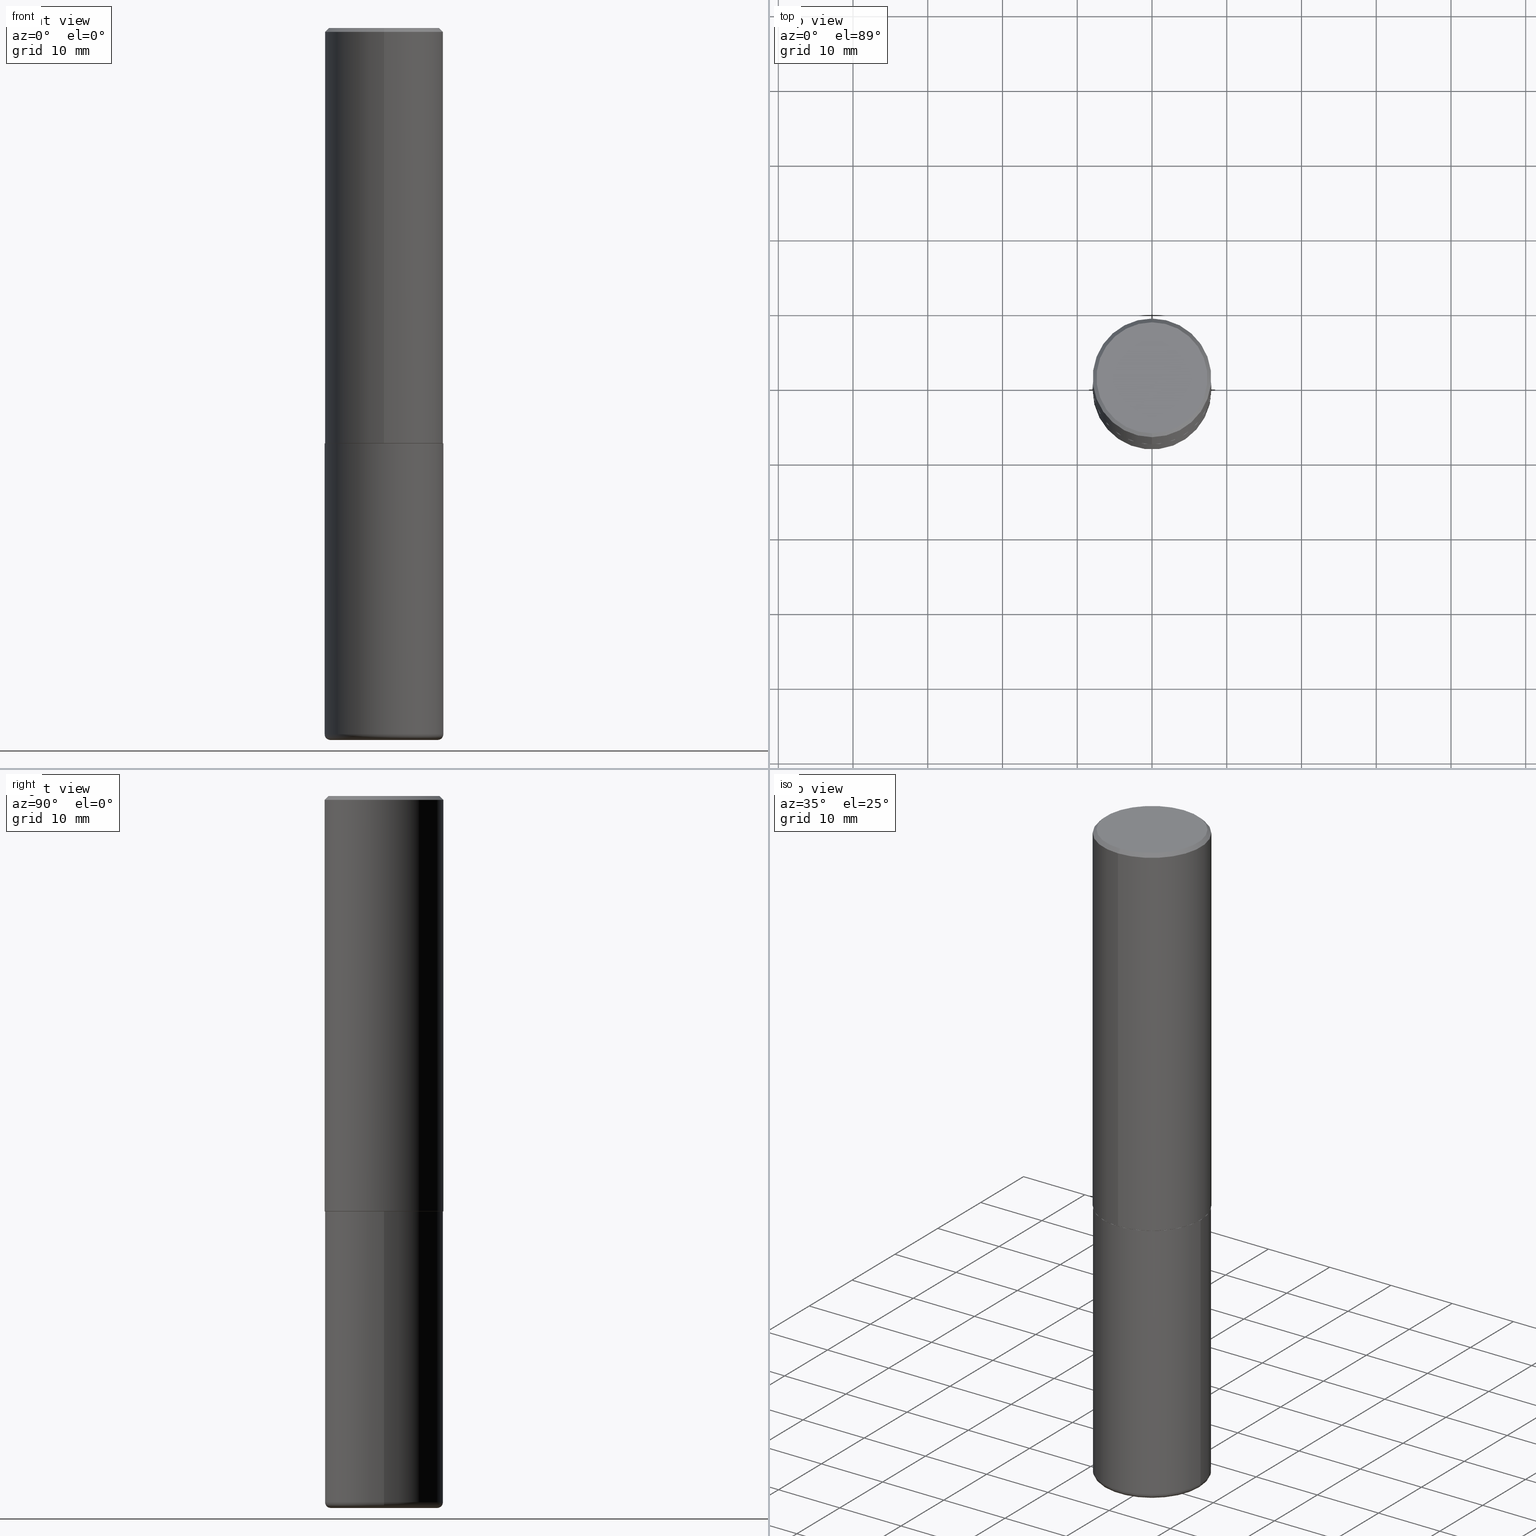
[diagram: canonical four-view strip — front | top / right | iso, engineering-drawing reading convention]
A machine part, canonical four-view strip (front | top / right | iso — engineering-drawing reading convention). The complete STEP part file that produces these views, byte-faithful:
ISO-10303-21;
HEADER;
FILE_DESCRIPTION (( 'STEP AP203' ),
    '1' );
FILE_NAME ('77383.STEP',
    '2024-05-02T19:34:33',
    ( '' ),
    ( '' ),
    'SwSTEP 2.0',
    'SolidWorks 2023',
    '' );
FILE_SCHEMA (( 'CONFIG_CONTROL_DESIGN' ));
ENDSEC;

DATA;
#1 = EDGE_LOOP ( 'NONE', ( #92, #311 ) ) ;
#2 = AXIS2_PLACEMENT_3D ( 'NONE', #60, #357, #396 ) ;
#3 = EDGE_LOOP ( 'NONE', ( #121, #36, #211, #184 ) ) ;
#4 = ORIENTED_EDGE ( 'NONE', *, *, #191, .F. ) ;
#5 = ORIENTED_EDGE ( 'NONE', *, *, #355, .F. ) ;
#6 = CARTESIAN_POINT ( 'NONE',  ( 5.348352127477146811E-29, -7.632212748918013096E-15, -2.186500000000000110 ) ) ;
#7 = CARTESIAN_POINT ( 'NONE',  ( 5.348352127477146811E-29, -7.632212748918013096E-15, -2.186500000000000110 ) ) ;
#8 = CALENDAR_DATE ( 2024, 2, 5 ) ;
#9 = DIRECTION ( 'NONE',  ( -6.982962677686265922E-15, -1.000000000000000000, 3.496765431890253764E-15 ) ) ;
#10 = EDGE_CURVE ( 'NONE', #34, #105, #149, .T. ) ;
#11 = CONICAL_SURFACE ( 'NONE', #78, 0.3125000000000000000, 0.7853981633974471688 ) ;
#12 = EDGE_LOOP ( 'NONE', ( #63, #179 ) ) ;
#13 = CARTESIAN_POINT ( 'NONE',  ( -0.3125000000000000000, -8.092516955357627487E-15, -2.187500000000000000 ) ) ;
#14 = AXIS2_PLACEMENT_3D ( 'NONE', #7, #134, #88 ) ;
#15 = CARTESIAN_POINT ( 'NONE',  ( 2.213340621892764926E-15, 0.3114999999999923386, -2.187500000000001332 ) ) ;
#16 = ORIENTED_EDGE ( 'NONE', *, *, #115, .T. ) ;
#17 = CARTESIAN_POINT ( 'NONE',  ( 2.182175836776958741E-15, 0.3124999999999999445, -0.02000000000000116268 ) ) ;
#18 = ADVANCED_FACE ( 'NONE', ( #241 ), #298, .T. ) ;
#19 = AXIS2_PLACEMENT_3D ( 'NONE', #110, #68, #363 ) ;
#20 = LINE ( 'NONE', #17, #251 ) ;
#21 = AXIS2_PLACEMENT_3D ( 'NONE', #122, #156, #386 ) ;
#22 = ORIENTED_EDGE ( 'NONE', *, *, #342, .T. ) ;
#23 = DATE_AND_TIME ( #77, #335 ) ;
#24 = DIRECTION ( 'NONE',  ( -2.446079180186209356E-29, 3.490607248533278647E-15, 1.000000000000000000 ) ) ;
#25 = EDGE_CURVE ( 'NONE', #390, #272, #319, .T. ) ;
#26 = CARTESIAN_POINT ( 'NONE',  ( -0.3125000000000000000, 2.220446049250313081E-15, -1.537167215704658232E-29 ) ) ;
#27 = APPROVAL_PERSON_ORGANIZATION ( #55, #69, #208 ) ;
#28 = ORIENTED_EDGE ( 'NONE', *, *, #10, .T. ) ;
#29 = CARTESIAN_POINT ( 'NONE',  ( 5.350798206657333543E-29, -7.635703356166547780E-15, -2.187500000000000000 ) ) ;
#30 = PERSON_AND_ORGANIZATION ( #409, #288 ) ;
#31 = EDGE_CURVE ( 'NONE', #272, #213, #310, .T. ) ;
#32 = VERTEX_POINT ( 'NONE', #341 ) ;
#33 = AXIS2_PLACEMENT_3D ( 'NONE', #45, #304, #117 ) ;
#34 = VERTEX_POINT ( 'NONE', #58 ) ;
#35 = CIRCLE ( 'NONE', #280, 0.3125000000000000000 ) ;
#36 = ORIENTED_EDGE ( 'NONE', *, *, #302, .T. ) ;
#37 = DIRECTION ( 'NONE',  ( -1.000000000000000000, 6.982962677686265922E-15, -4.876176775795935793E-29 ) ) ;
#38 = DIRECTION ( 'NONE',  ( -2.446079180186209356E-29, 3.490607248533278647E-15, 1.000000000000000000 ) ) ;
#39 = DIRECTION ( 'NONE',  ( -2.446079180186209356E-29, 3.490607248533278647E-15, 1.000000000000000000 ) ) ;
#40 = APPROVAL_STATUS ( 'not_yet_approved' ) ;
#41 = CLOSED_SHELL ( 'NONE', ( #223, #173, #192, #212, #316, #231 ) ) ;
#42 = EDGE_LOOP ( 'NONE', ( #57, #28, #91, #4 ) ) ;
#43 = AXIS2_PLACEMENT_3D ( 'NONE', #413, #119, #86 ) ;
#44 = FACE_OUTER_BOUND ( 'NONE', #205, .T. ) ;
#45 = CARTESIAN_POINT ( 'NONE',  ( 4.892158360372435246E-31, -6.981214497066581551E-17, -0.02000000000000006981 ) ) ;
#46 = DIRECTION ( 'NONE',  ( -4.851104656540957964E-15, -0.7071067811865491270, -0.7071067811865459074 ) ) ;
#47 = CARTESIAN_POINT ( 'NONE',  ( -0.2824999999999999734, -1.092681816169285040E-14, -3.750000000000000888 ) ) ;
#48 = MECHANICAL_CONTEXT ( 'NONE', #200, 'mechanical' ) ;
#49 = CARTESIAN_POINT ( 'NONE',  ( 0.000000000000000000, 0.000000000000000000, 0.000000000000000000 ) ) ;
#50 = CC_DESIGN_APPROVAL ( #62, ( #103 ) ) ;
#51 = EDGE_LOOP ( 'NONE', ( #93, #362, #120, #61 ) ) ;
#52 = COORDINATED_UNIVERSAL_TIME_OFFSET ( 5, 0, .BEHIND. ) ;
#53 = CARTESIAN_POINT ( 'NONE',  ( -2.143905624303602824E-15, -0.3125000000000000555, -0.01999999999999897693 ) ) ;
#54 = DIRECTION ( 'NONE',  ( -2.445468806185136597E-29, 3.491481338843145583E-15, 1.000000000000000000 ) ) ;
#55 = PERSON_AND_ORGANIZATION ( #409, #288 ) ;
#56 = CARTESIAN_POINT ( 'NONE',  ( 0.3125000000000001665, -1.517048641727346397E-14, -3.720000000000000195 ) ) ;
#57 = ORIENTED_EDGE ( 'NONE', *, *, #141, .T. ) ;
#58 = CARTESIAN_POINT ( 'NONE',  ( 2.220446049250340691E-15, 0.3124999999999926170, -2.186500000000000998 ) ) ;
#59 = COORDINATED_UNIVERSAL_TIME_OFFSET ( 5, 0, .BEHIND. ) ;
#60 = CARTESIAN_POINT ( 'NONE',  ( 9.097143959008708723E-29, -1.298831058049650089E-14, -3.720000000000000195 ) ) ;
#61 = ORIENTED_EDGE ( 'NONE', *, *, #325, .T. ) ;
#62 = APPROVAL ( #40, 'UNSPECIFIED' ) ;
#63 = ORIENTED_EDGE ( 'NONE', *, *, #395, .F. ) ;
#64 = EDGE_LOOP ( 'NONE', ( #254, #332, #367, #5 ) ) ;
#65 = SECURITY_CLASSIFICATION_LEVEL ( 'unclassified' ) ;
#66 = DIRECTION ( 'NONE',  ( -6.982962677686265922E-15, -1.000000000000000000, 3.490607248533278647E-15 ) ) ;
#67 = AXIS2_PLACEMENT_3D ( 'NONE', #247, #323, #37 ) ;
#68 = DIRECTION ( 'NONE',  ( -2.445468806185136597E-29, 3.491481338843145583E-15, 1.000000000000000000 ) ) ;
#69 = APPROVAL ( #281, 'UNSPECIFIED' ) ;
#70 = DIRECTION ( 'NONE',  ( -2.445468806185136597E-29, 3.491481338843145583E-15, 1.000000000000000000 ) ) ;
#71 = PRODUCT ( '77383', '77383', '', ( #48 ) ) ;
#72 = VERTEX_POINT ( 'NONE', #47 ) ;
#73 = DIRECTION ( 'NONE',  ( 7.105427357601001859E-15, 1.000000000000000000, -3.491481338843145583E-15 ) ) ;
#74 = CIRCLE ( 'NONE', #220, 0.2824999999999999734 ) ;
#75 = CARTESIAN_POINT ( 'NONE',  ( 2.112346210000096232E-15, 0.2925000000000002043, -1.221878378646340071E-15 ) ) ;
#76 = CALENDAR_DATE ( 2024, 2, 5 ) ;
#77 = CALENDAR_DATE ( 2024, 2, 5 ) ;
#78 = AXIS2_PLACEMENT_3D ( 'NONE', #265, #402, #400 ) ;
#79 = TOROIDAL_SURFACE ( 'NONE', #2, 0.2825000000000000289, 0.03000000000000024175 ) ;
#80 = CARTESIAN_POINT ( 'NONE',  ( 9.097143959008708723E-29, -1.298831058049650089E-14, -3.720000000000000195 ) ) ;
#81 = DIRECTION ( 'NONE',  ( 1.000000000000000000, -6.982962677686270655E-15, 0.000000000000000000 ) ) ;
#82 = PLANE ( 'NONE',  #385 ) ;
#83 = ORIENTED_EDGE ( 'NONE', *, *, #230, .T. ) ;
#84 = CARTESIAN_POINT ( 'NONE',  ( 0.000000000000000000, 0.000000000000000000, 0.000000000000000000 ) ) ;
#85 = ADVANCED_FACE ( 'NONE', ( #207 ), #404, .F. ) ;
#86 = DIRECTION ( 'NONE',  ( -6.982962677686265922E-15, -1.000000000000000000, 3.507991003100177457E-15 ) ) ;
#87 = DIRECTION ( 'NONE',  ( -2.446079180186209356E-29, 3.490607248533278647E-15, 1.000000000000000000 ) ) ;
#88 = DIRECTION ( 'NONE',  ( -6.982962677686265922E-15, -1.000000000000000000, 3.496765431890253764E-15 ) ) ;
#89 = VECTOR ( 'NONE', #273, 39.37007874015748143 ) ;
#90 = ADVANCED_FACE ( 'NONE', ( #189 ), #11, .T. ) ;
#91 = ORIENTED_EDGE ( 'NONE', *, *, #286, .F. ) ;
#92 = ORIENTED_EDGE ( 'NONE', *, *, #218, .T. ) ;
#93 = ORIENTED_EDGE ( 'NONE', *, *, #275, .F. ) ;
#94 = EDGE_LOOP ( 'NONE', ( #233, #287, #347, #160 ) ) ;
#95 = EDGE_CURVE ( 'NONE', #72, #272, #305, .T. ) ;
#96 = ORIENTED_EDGE ( 'NONE', *, *, #128, .F. ) ;
#97 = AXIS2_PLACEMENT_3D ( 'NONE', #338, #144, #268 ) ;
#98 = ORIENTED_EDGE ( 'NONE', *, *, #104, .T. ) ;
#99 = PERSON_AND_ORGANIZATION ( #409, #288 ) ;
#100 = LINE ( 'NONE', #397, #312 ) ;
#101 = PERSON_AND_ORGANIZATION_ROLE ( 'classification_officer' ) ;
#102 =( GEOMETRIC_REPRESENTATION_CONTEXT ( 3 ) GLOBAL_UNCERTAINTY_ASSIGNED_CONTEXT ( ( #289 ) ) GLOBAL_UNIT_ASSIGNED_CONTEXT ( ( #235, #216, #266 ) ) REPRESENTATION_CONTEXT ( 'NONE', 'WORKASPACE' ) );
#103 = SECURITY_CLASSIFICATION ( '', '', #65 ) ;
#104 = EDGE_CURVE ( 'NONE', #248, #245, #100, .T. ) ;
#105 = VERTEX_POINT ( 'NONE', #296 ) ;
#106 = APPROVAL_DATE_TIME ( #255, #62 ) ;
#107 = DIRECTION ( 'NONE',  ( -2.446079180186209356E-29, 3.490607248533278647E-15, 1.000000000000000000 ) ) ;
#108 = APPROVAL_STATUS ( 'not_yet_approved' ) ;
#109 = CARTESIAN_POINT ( 'NONE',  ( -2.143905624303602824E-15, -0.3125000000000000555, -0.01999999999999897693 ) ) ;
#110 = CARTESIAN_POINT ( 'NONE',  ( 0.000000000000000000, 0.000000000000000000, 0.000000000000000000 ) ) ;
#111 = AXIS2_PLACEMENT_3D ( 'NONE', #337, #282, #81 ) ;
#112 = LOCAL_TIME ( 15, 34, 33.00000000000000000, #135 ) ;
#113 = CARTESIAN_POINT ( 'NONE',  ( 0.2825000000000000289, -1.496099753694287092E-14, -3.720000000000000195 ) ) ;
#114 = CARTESIAN_POINT ( 'NONE',  ( 5.349463013529986305E-29, -7.637615428719381825E-15, -2.187500000000000000 ) ) ;
#115 = EDGE_CURVE ( 'NONE', #34, #245, #365, .T. ) ;
#116 = DIRECTION ( 'NONE',  ( 1.000000000000000000, -6.982962677686270655E-15, 0.000000000000000000 ) ) ;
#117 = DIRECTION ( 'NONE',  ( 6.982962677686265133E-15, 1.000000000000000000, -3.496765431890256920E-15 ) ) ;
#118 = AXIS2_PLACEMENT_3D ( 'NONE', #290, #244, #381 ) ;
#119 = DIRECTION ( 'NONE',  ( -2.446079180186209356E-29, 3.490607248533278647E-15, 1.000000000000000000 ) ) ;
#120 = ORIENTED_EDGE ( 'NONE', *, *, #322, .T. ) ;
#121 = ORIENTED_EDGE ( 'NONE', *, *, #395, .T. ) ;
#122 = CARTESIAN_POINT ( 'NONE',  ( 4.913580105495284132E-45, -7.011783785014308296E-31, -2.008757584503554466E-16 ) ) ;
#123 = CC_DESIGN_DATE_AND_TIME_ASSIGNMENT ( #142, #364, ( #140 ) ) ;
#124 = PLANE ( 'NONE',  #67 ) ;
#125 = ADVANCED_FACE ( 'NONE', ( #132 ), #257, .F. ) ;
#126 = CIRCLE ( 'NONE', #202, 0.3125000000000000000 ) ;
#127 = EDGE_LOOP ( 'NONE', ( #299, #176, #283, #285 ) ) ;
#128 = EDGE_CURVE ( 'NONE', #272, #390, #126, .T. ) ;
#129 = EDGE_CURVE ( 'NONE', #324, #248, #360, .T. ) ;
#130 = FACE_OUTER_BOUND ( 'NONE', #157, .T. ) ;
#131 = VECTOR ( 'NONE', #411, 39.37007874015748143 ) ;
#132 = FACE_OUTER_BOUND ( 'NONE', #1, .T. ) ;
#133 = AXIS2_PLACEMENT_3D ( 'NONE', #80, #405, #345 ) ;
#134 = DIRECTION ( 'NONE',  ( -2.446079180186209356E-29, 3.490607248533278647E-15, 1.000000000000000000 ) ) ;
#135 = COORDINATED_UNIVERSAL_TIME_OFFSET ( 5, 0, .BEHIND. ) ;
#136 = DIRECTION ( 'NONE',  ( -2.446079180186209356E-29, 3.490607248533278647E-15, 1.000000000000000000 ) ) ;
#137 = CARTESIAN_POINT ( 'NONE',  ( 9.097143959008708723E-29, -1.298831058049650089E-14, -3.720000000000000195 ) ) ;
#138 = DIMENSIONAL_EXPONENTS ( 1.000000000000000000, 0.000000000000000000, 0.000000000000000000, 0.000000000000000000, 0.000000000000000000, 0.000000000000000000, 0.000000000000000000 ) ;
#139 = PERSON_AND_ORGANIZATION ( #409, #288 ) ;
#140 = PRODUCT_DEFINITION ( 'UNKNOWN', '', #292, #415 ) ;
#141 = EDGE_CURVE ( 'NONE', #245, #34, #195, .T. ) ;
#142 = DATE_AND_TIME ( #314, #177 ) ;
#143 = CARTESIAN_POINT ( 'NONE',  ( -2.175192874099218296E-15, -0.3115000000000076597, -2.187499999999999112 ) ) ;
#144 = DIRECTION ( 'NONE',  ( 0.000000000000000000, 0.000000000000000000, 1.000000000000000000 ) ) ;
#145 = DIRECTION ( 'NONE',  ( -6.982962677686266711E-15, -1.000000000000000000, 3.491481338843145583E-15 ) ) ;
#146 = CARTESIAN_POINT ( 'NONE',  ( 2.220446049250313475E-15, 0.3125000000000001665, -1.090814765166650021E-15 ) ) ;
#147 = APPLICATION_PROTOCOL_DEFINITION ( 'international standard', 'config_control_design', 1994, #284 ) ;
#148 = FACE_OUTER_BOUND ( 'NONE', #344, .T. ) ;
#149 = LINE ( 'NONE', #146, #131 ) ;
#150 = DATE_AND_TIME ( #378, #154 ) ;
#151 = CARTESIAN_POINT ( 'NONE',  ( 9.170508023194263359E-29, -1.309305502066179899E-14, -3.750000000000000888 ) ) ;
#152 = ORIENTED_EDGE ( 'NONE', *, *, #240, .T. ) ;
#153 = CC_DESIGN_APPROVAL ( #69, ( #140 ) ) ;
#154 = LOCAL_TIME ( 15, 34, 33.00000000000000000, #417 ) ;
#155 = DIRECTION ( 'NONE',  ( -2.446079180186209075E-29, 3.490607248533278647E-15, 1.000000000000000000 ) ) ;
#156 = DIRECTION ( 'NONE',  ( -2.446079180186209356E-29, 3.490607248533278647E-15, 1.000000000000000000 ) ) ;
#157 = EDGE_LOOP ( 'NONE', ( #354, #219, #353, #228 ) ) ;
#158 = AXIS2_PLACEMENT_3D ( 'NONE', #368, #24, #278 ) ;
#159 = DIRECTION ( 'NONE',  ( -4.937700262165053702E-15, -0.7071067811866175168, 0.7071067811864775177 ) ) ;
#160 = ORIENTED_EDGE ( 'NONE', *, *, #322, .F. ) ;
#161 = DIRECTION ( 'NONE',  ( 1.000000000000000000, -6.982962677686269077E-15, 0.000000000000000000 ) ) ;
#162 = CIRCLE ( 'NONE', #183, 0.3125000000000000000 ) ;
#163 = COORDINATED_UNIVERSAL_TIME_OFFSET ( 5, 0, .BEHIND. ) ;
#164 = DIRECTION ( 'NONE',  ( 1.000000000000000000, -6.982962677686266711E-15, 4.876176775795936353E-29 ) ) ;
#165 = APPROVAL_ROLE ( '' ) ;
#166 = CC_DESIGN_PERSON_AND_ORGANIZATION_ASSIGNMENT ( #139, #412, ( #292 ) ) ;
#167 = CONICAL_SURFACE ( 'NONE', #209, 0.3114999999999999991, 0.7853981633975507526 ) ;
#168 = DIRECTION ( 'NONE',  ( -6.982962677686265133E-15, -1.000000000000000000, 3.490607248533278253E-15 ) ) ;
#169 = LINE ( 'NONE', #15, #313 ) ;
#170 = CONICAL_SURFACE ( 'NONE', #43, 0.3114999999999999991, 0.7853981633975507526 ) ;
#171 = APPROVAL_PERSON_ORGANIZATION ( #30, #256, #165 ) ;
#172 = FACE_OUTER_BOUND ( 'NONE', #42, .T. ) ;
#173 = ADVANCED_FACE ( 'NONE', ( #130 ), #79, .T. ) ;
#174 = ORIENTED_EDGE ( 'NONE', *, *, #191, .T. ) ;
#175 = CARTESIAN_POINT ( 'NONE',  ( 2.216893335571566614E-15, 0.3114999999999923386, -2.187500000000001332 ) ) ;
#176 = ORIENTED_EDGE ( 'NONE', *, *, #128, .T. ) ;
#177 = LOCAL_TIME ( 15, 34, 33.00000000000000000, #59 ) ;
#178 = ADVANCED_BREP_SHAPE_REPRESENTATION ( '77383', ( #398, #252, #97 ), #102 ) ;
#179 = ORIENTED_EDGE ( 'NONE', *, *, #129, .F. ) ;
#180 = EDGE_CURVE ( 'NONE', #32, #188, #414, .T. ) ;
#181 = ORIENTED_EDGE ( 'NONE', *, *, #115, .F. ) ;
#182 = AXIS2_PLACEMENT_3D ( 'NONE', #224, #73, #330 ) ;
#183 = AXIS2_PLACEMENT_3D ( 'NONE', #201, #236, #204 ) ;
#184 = ORIENTED_EDGE ( 'NONE', *, *, #104, .F. ) ;
#185 = AXIS2_PLACEMENT_3D ( 'NONE', #29, #155, #66 ) ;
#186 = CARTESIAN_POINT ( 'NONE',  ( 2.042516583223234117E-15, 0.2925000000000002043, -1.121440499421162508E-15 ) ) ;
#187 = AXIS2_PLACEMENT_3D ( 'NONE', #229, #300, #168 ) ;
#188 = VERTEX_POINT ( 'NONE', #75 ) ;
#189 = FACE_OUTER_BOUND ( 'NONE', #51, .T. ) ;
#190 = LINE ( 'NONE', #295, #351 ) ;
#191 = EDGE_CURVE ( 'NONE', #245, #262, #190, .T. ) ;
#192 = ADVANCED_FACE ( 'NONE', ( #407 ), #82, .F. ) ;
#193 = PERSON_AND_ORGANIZATION ( #409, #288 ) ;
#194 = APPROVAL_DATE_TIME ( #23, #69 ) ;
#195 = CIRCLE ( 'NONE', #14, 0.3125000000000002776 ) ;
#196 = DIRECTION ( 'NONE',  ( 4.937700262164541731E-15, 0.7071067811865442421, -0.7071067811865507924 ) ) ;
#197 = EDGE_LOOP ( 'NONE', ( #416, #291, #98, #181 ) ) ;
#198 = DIRECTION ( 'NONE',  ( 1.000000000000000000, -6.982962677686269077E-15, 0.000000000000000000 ) ) ;
#199 = CC_DESIGN_PERSON_AND_ORGANIZATION_ASSIGNMENT ( #99, #259, ( #292 ) ) ;
#200 = APPLICATION_CONTEXT ( 'configuration controlled 3d designs of mechanical parts and assemblies' ) ;
#201 = CARTESIAN_POINT ( 'NONE',  ( 4.892158360372435246E-31, -6.981214497066581551E-17, -0.02000000000000006981 ) ) ;
#202 = AXIS2_PLACEMENT_3D ( 'NONE', #137, #70, #161 ) ;
#203 = CARTESIAN_POINT ( 'NONE',  ( 5.349463013529986305E-29, -7.637615428719381825E-15, -2.187500000000000000 ) ) ;
#204 = DIRECTION ( 'NONE',  ( -6.982962677686265133E-15, -1.000000000000000000, 3.496765431890256920E-15 ) ) ;
#205 = EDGE_LOOP ( 'NONE', ( #260, #83, #22, #96 ) ) ;
#206 = CARTESIAN_POINT ( 'NONE',  ( 0.3125000000000000000, -2.182175836776958347E-15, 1.523805242436230075E-29 ) ) ;
#207 = FACE_OUTER_BOUND ( 'NONE', #12, .T. ) ;
#208 = APPROVAL_ROLE ( '' ) ;
#209 = AXIS2_PLACEMENT_3D ( 'NONE', #383, #38, #309 ) ;
#210 = LENGTH_MEASURE_WITH_UNIT ( LENGTH_MEASURE( 0.02539999999999999897 ), #242 );
#211 = ORIENTED_EDGE ( 'NONE', *, *, #141, .F. ) ;
#212 = ADVANCED_FACE ( 'NONE', ( #301 ), #370, .T. ) ;
#213 = VERTEX_POINT ( 'NONE', #13 ) ;
#214 = CYLINDRICAL_SURFACE ( 'NONE', #19, 0.3125000000000000000 ) ;
#215 = AXIS2_PLACEMENT_3D ( 'NONE', #113, #145, #373 ) ;
#216 =( NAMED_UNIT ( * ) PLANE_ANGLE_UNIT ( ) SI_UNIT ( $, .RADIAN. ) );
#217 = DIRECTION ( 'NONE',  ( 6.982962677686265922E-15, 1.000000000000000000, -3.490607248533278647E-15 ) ) ;
#218 = EDGE_CURVE ( 'NONE', #188, #32, #271, .T. ) ;
#219 = ORIENTED_EDGE ( 'NONE', *, *, #95, .T. ) ;
#220 = AXIS2_PLACEMENT_3D ( 'NONE', #151, #308, #116 ) ;
#221 = ORIENTED_EDGE ( 'NONE', *, *, #359, .T. ) ;
#222 = DIRECTION ( 'NONE',  ( -6.982962677686265922E-15, -1.000000000000000000, 3.490607248533278253E-15 ) ) ;
#223 = ADVANCED_FACE ( 'NONE', ( #317 ), #214, .T. ) ;
#224 = CARTESIAN_POINT ( 'NONE',  ( -0.2825000000000000289, -1.098102735197421805E-14, -3.720000000000000195 ) ) ;
#225 = SHAPE_DEFINITION_REPRESENTATION ( #246, #178 ) ;
#226 = DIRECTION ( 'NONE',  ( -1.000000000000000000, 6.982962677686265922E-15, -4.876176775795935793E-29 ) ) ;
#227 = CARTESIAN_POINT ( 'NONE',  ( 5.350798206657333543E-29, -7.635703356166547780E-15, -2.187500000000000000 ) ) ;
#228 = ORIENTED_EDGE ( 'NONE', *, *, #342, .F. ) ;
#229 = CARTESIAN_POINT ( 'NONE',  ( 0.000000000000000000, 0.000000000000000000, 0.000000000000000000 ) ) ;
#230 = EDGE_CURVE ( 'NONE', #72, #382, #406, .T. ) ;
#231 = ADVANCED_FACE ( 'NONE', ( #279 ), #124, .T. ) ;
#232 = DIRECTION ( 'NONE',  ( -2.445468806185136597E-29, 3.491481338843145583E-15, 1.000000000000000000 ) ) ;
#233 = ORIENTED_EDGE ( 'NONE', *, *, #180, .F. ) ;
#234 = DIRECTION ( 'NONE',  ( -2.445468806185136597E-29, 3.491481338843145583E-15, 1.000000000000000000 ) ) ;
#235 =( CONVERSION_BASED_UNIT ( 'INCH', #210 ) LENGTH_UNIT ( ) NAMED_UNIT ( #138 ) );
#236 = DIRECTION ( 'NONE',  ( -2.446079180186209356E-29, 3.490607248533278647E-15, 1.000000000000000000 ) ) ;
#237 = AXIS2_PLACEMENT_3D ( 'NONE', #372, #328, #222 ) ;
#238 = CC_DESIGN_PERSON_AND_ORGANIZATION_ASSIGNMENT ( #258, #101, ( #103 ) ) ;
#239 = DIRECTION ( 'NONE',  ( 5.024295867788576727E-15, 0.7071067811866224018, 0.7071067811864726327 ) ) ;
#240 = EDGE_CURVE ( 'NONE', #213, #358, #320, .T. ) ;
#241 = FACE_OUTER_BOUND ( 'NONE', #94, .T. ) ;
#242 =( LENGTH_UNIT ( ) NAMED_UNIT ( * ) SI_UNIT ( $, .METRE. ) );
#243 = ADVANCED_FACE ( 'NONE', ( #349 ), #167, .T. ) ;
#244 = DIRECTION ( 'NONE',  ( -2.445468806185136597E-29, 3.491481338843145583E-15, 1.000000000000000000 ) ) ;
#245 = VERTEX_POINT ( 'NONE', #403 ) ;
#246 = PRODUCT_DEFINITION_SHAPE ( 'NONE', 'NONE',  #140 ) ;
#247 = CARTESIAN_POINT ( 'NONE',  ( 4.105979019423556328E-29, -2.034574880915099628E-14, -3.750000000000000000 ) ) ;
#248 = VERTEX_POINT ( 'NONE', #143 ) ;
#249 = ORIENTED_EDGE ( 'NONE', *, *, #325, .F. ) ;
#250 = TOROIDAL_SURFACE ( 'NONE', #133, 0.2825000000000000289, 0.03000000000000024175 ) ;
#251 = VECTOR ( 'NONE', #196, 39.37007874015748143 ) ;
#252 = MANIFOLD_SOLID_BREP ( 'Body-Move/Copy2[2]', #384 ) ;
#253 = ADVANCED_FACE ( 'NONE', ( #172 ), #269, .T. ) ;
#254 = ORIENTED_EDGE ( 'NONE', *, *, #25, .T. ) ;
#255 = DATE_AND_TIME ( #76, #112 ) ;
#256 = APPROVAL ( #108, 'UNSPECIFIED' ) ;
#257 = PLANE ( 'NONE',  #393 ) ;
#258 = PERSON_AND_ORGANIZATION ( #409, #288 ) ;
#259 = PERSON_AND_ORGANIZATION_ROLE ( 'design_supplier' ) ;
#260 = ORIENTED_EDGE ( 'NONE', *, *, #95, .F. ) ;
#261 = PERSON_AND_ORGANIZATION ( #409, #288 ) ;
#262 = VERTEX_POINT ( 'NONE', #109 ) ;
#263 = AXIS2_PLACEMENT_3D ( 'NONE', #84, #410, #346 ) ;
#264 = APPLICATION_PROTOCOL_DEFINITION ( 'international standard', 'config_control_design', 1994, #200 ) ;
#265 = CARTESIAN_POINT ( 'NONE',  ( 4.892158360372435246E-31, -6.981214497066581551E-17, -0.02000000000000006981 ) ) ;
#266 =( NAMED_UNIT ( * ) SI_UNIT ( $, .STERADIAN. ) SOLID_ANGLE_UNIT ( ) );
#267 = DIRECTION ( 'NONE',  ( 1.000000000000000000, -6.982962677686269077E-15, 0.000000000000000000 ) ) ;
#268 = DIRECTION ( 'NONE',  ( 1.000000000000000000, 0.000000000000000000, 0.000000000000000000 ) ) ;
#269 = CYLINDRICAL_SURFACE ( 'NONE', #187, 0.3125000000000001665 ) ;
#270 = AXIS2_PLACEMENT_3D ( 'NONE', #6, #107, #9 ) ;
#271 = CIRCLE ( 'NONE', #21, 0.2925000000000002043 ) ;
#272 = VERTEX_POINT ( 'NONE', #340 ) ;
#273 = DIRECTION ( 'NONE',  ( -2.445468806185136877E-29, 3.491481338843145188E-15, 1.000000000000000000 ) ) ;
#274 = CYLINDRICAL_SURFACE ( 'NONE', #263, 0.3125000000000001665 ) ;
#275 = EDGE_CURVE ( 'NONE', #32, #262, #408, .T. ) ;
#276 = APPROVAL_DATE_TIME ( #150, #256 ) ;
#277 = EDGE_CURVE ( 'NONE', #382, #72, #74, .T. ) ;
#278 = DIRECTION ( 'NONE',  ( -6.982962677686265133E-15, -1.000000000000000000, 3.496765431890256920E-15 ) ) ;
#279 = FACE_OUTER_BOUND ( 'NONE', #388, .T. ) ;
#280 = AXIS2_PLACEMENT_3D ( 'NONE', #114, #232, #267 ) ;
#281 = APPROVAL_STATUS ( 'not_yet_approved' ) ;
#282 = DIRECTION ( 'NONE',  ( -2.445468806185136597E-29, 3.491481338843145583E-15, 1.000000000000000000 ) ) ;
#283 = ORIENTED_EDGE ( 'NONE', *, *, #355, .T. ) ;
#284 = APPLICATION_CONTEXT ( 'configuration controlled 3d designs of mechanical parts and assemblies' ) ;
#285 = ORIENTED_EDGE ( 'NONE', *, *, #240, .F. ) ;
#286 = EDGE_CURVE ( 'NONE', #262, #105, #162, .T. ) ;
#287 = ORIENTED_EDGE ( 'NONE', *, *, #275, .T. ) ;
#288 = ORGANIZATION ( 'UNSPECIFIED', 'UNSPECIFIED', '' ) ;
#289 = UNCERTAINTY_MEASURE_WITH_UNIT (LENGTH_MEASURE( 1.000000000000000082E-05 ), #235, 'distance_accuracy_value', 'NONE');
#290 = CARTESIAN_POINT ( 'NONE',  ( 5.349463013529986305E-29, -7.637615428719381825E-15, -2.187500000000000000 ) ) ;
#291 = ORIENTED_EDGE ( 'NONE', *, *, #129, .T. ) ;
#292 = PRODUCT_DEFINITION_FORMATION_WITH_SPECIFIED_SOURCE ( 'ANY', '', #71, .NOT_KNOWN. ) ;
#293 = DIRECTION ( 'NONE',  ( -6.982962677686265922E-15, -1.000000000000000000, 3.507991003100177457E-15 ) ) ;
#294 = DATE_AND_TIME ( #8, #315 ) ;
#295 = CARTESIAN_POINT ( 'NONE',  ( -2.182175836776959136E-15, -0.3125000000000001665, 1.090814765166650021E-15 ) ) ;
#296 = CARTESIAN_POINT ( 'NONE',  ( 2.182175836776958741E-15, 0.3124999999999999445, -0.02000000000000116268 ) ) ;
#297 = PERSON_AND_ORGANIZATION_ROLE ( 'creator' ) ;
#298 = CONICAL_SURFACE ( 'NONE', #33, 0.3125000000000000000, 0.7853981633974471688 ) ;
#299 = ORIENTED_EDGE ( 'NONE', *, *, #31, .F. ) ;
#300 = DIRECTION ( 'NONE',  ( -2.446079180186209356E-29, 3.490607248533278647E-15, 1.000000000000000000 ) ) ;
#301 = FACE_OUTER_BOUND ( 'NONE', #127, .T. ) ;
#302 = EDGE_CURVE ( 'NONE', #324, #34, #169, .T. ) ;
#303 = LINE ( 'NONE', #206, #89 ) ;
#304 = DIRECTION ( 'NONE',  ( 2.446079180186209356E-29, -3.490607248533278647E-15, -1.000000000000000000 ) ) ;
#305 = CIRCLE ( 'NONE', #182, 0.03000000000000025910 ) ;
#306 = AXIS2_PLACEMENT_3D ( 'NONE', #49, #234, #164 ) ;
#307 = PERSON_AND_ORGANIZATION_ROLE ( 'design_owner' ) ;
#308 = DIRECTION ( 'NONE',  ( -2.445468806185136597E-29, 3.491481338843145583E-15, 1.000000000000000000 ) ) ;
#309 = DIRECTION ( 'NONE',  ( -6.982962677686265922E-15, -1.000000000000000000, 3.507991003100177457E-15 ) ) ;
#310 = LINE ( 'NONE', #26, #334 ) ;
#311 = ORIENTED_EDGE ( 'NONE', *, *, #180, .T. ) ;
#312 = VECTOR ( 'NONE', #159, 39.37007874015748143 ) ;
#313 = VECTOR ( 'NONE', #239, 39.37007874015748143 ) ;
#314 = CALENDAR_DATE ( 2024, 2, 5 ) ;
#315 = LOCAL_TIME ( 15, 34, 33.00000000000000000, #163 ) ;
#316 = ADVANCED_FACE ( 'NONE', ( #44 ), #250, .T. ) ;
#317 = FACE_OUTER_BOUND ( 'NONE', #64, .T. ) ;
#318 = EDGE_LOOP ( 'NONE', ( #221, #152 ) ) ;
#319 = CIRCLE ( 'NONE', #374, 0.3125000000000000000 ) ;
#320 = CIRCLE ( 'NONE', #118, 0.3125000000000000000 ) ;
#321 = CC_DESIGN_PERSON_AND_ORGANIZATION_ASSIGNMENT ( #193, #307, ( #71 ) ) ;
#322 = EDGE_CURVE ( 'NONE', #188, #105, #20, .T. ) ;
#323 = DIRECTION ( 'NONE',  ( 2.438088387897960049E-29, -3.491481338843145188E-15, -1.000000000000000000 ) ) ;
#324 = VERTEX_POINT ( 'NONE', #175 ) ;
#325 = EDGE_CURVE ( 'NONE', #105, #262, #343, .T. ) ;
#326 = CARTESIAN_POINT ( 'NONE',  ( 5.350798206657333543E-29, -7.635703356166547780E-15, -2.187500000000000000 ) ) ;
#327 = DATE_TIME_ROLE ( 'classification_date' ) ;
#328 = DIRECTION ( 'NONE',  ( -2.446079180186209356E-29, 3.490607248533278647E-15, 1.000000000000000000 ) ) ;
#329 = CIRCLE ( 'NONE', #399, 0.3114999999999999991 ) ;
#330 = DIRECTION ( 'NONE',  ( -1.000000000000000000, 7.105427357600994759E-15, 0.000000000000000000 ) ) ;
#331 = PRODUCT_RELATED_PRODUCT_CATEGORY ( 'detail', '', ( #71 ) ) ;
#332 = ORIENTED_EDGE ( 'NONE', *, *, #31, .T. ) ;
#333 = DIRECTION ( 'NONE',  ( 2.438088387897960049E-29, -3.491481338843145188E-15, -1.000000000000000000 ) ) ;
#334 = VECTOR ( 'NONE', #380, 39.37007874015748143 ) ;
#335 = LOCAL_TIME ( 15, 34, 33.00000000000000000, #52 ) ;
#336 = CC_DESIGN_DATE_AND_TIME_ASSIGNMENT ( #294, #327, ( #103 ) ) ;
#337 = CARTESIAN_POINT ( 'NONE',  ( 9.170508023194263359E-29, -1.309305502066179899E-14, -3.750000000000000888 ) ) ;
#338 = CARTESIAN_POINT ( 'NONE',  ( 0.000000000000000000, 0.000000000000000000, 0.000000000000000000 ) ) ;
#339 = CARTESIAN_POINT ( 'NONE',  ( 0.3125000000000000000, -9.819791265496340172E-15, -2.187500000000000000 ) ) ;
#340 = CARTESIAN_POINT ( 'NONE',  ( -0.3125000000000001665, -1.076786453124618781E-14, -3.720000000000000195 ) ) ;
#341 = CARTESIAN_POINT ( 'NONE',  ( -2.075300644325888676E-15, -0.2925000000000002043, 8.201268617456294244E-16 ) ) ;
#342 = EDGE_CURVE ( 'NONE', #382, #390, #366, .T. ) ;
#343 = CIRCLE ( 'NONE', #158, 0.3125000000000000000 ) ;
#344 = EDGE_LOOP ( 'NONE', ( #375, #16, #174, #249 ) ) ;
#345 = DIRECTION ( 'NONE',  ( 1.000000000000000000, -6.982962677686269077E-15, 4.883557194083113462E-29 ) ) ;
#346 = DIRECTION ( 'NONE',  ( -6.982962677686265133E-15, -1.000000000000000000, 3.490607248533278253E-15 ) ) ;
#347 = ORIENTED_EDGE ( 'NONE', *, *, #286, .T. ) ;
#348 = PERSON_AND_ORGANIZATION ( #409, #288 ) ;
#349 = FACE_OUTER_BOUND ( 'NONE', #3, .T. ) ;
#350 = ADVANCED_FACE ( 'NONE', ( #379 ), #170, .T. ) ;
#351 = VECTOR ( 'NONE', #136, 39.37007874015748143 ) ;
#352 = CC_DESIGN_SECURITY_CLASSIFICATION ( #103, ( #292 ) ) ;
#353 = ORIENTED_EDGE ( 'NONE', *, *, #25, .F. ) ;
#354 = ORIENTED_EDGE ( 'NONE', *, *, #277, .T. ) ;
#355 = EDGE_CURVE ( 'NONE', #390, #358, #303, .T. ) ;
#356 = AXIS2_PLACEMENT_3D ( 'NONE', #326, #39, #293 ) ;
#357 = DIRECTION ( 'NONE',  ( -2.445468806185136597E-29, 3.491481338843145583E-15, 1.000000000000000000 ) ) ;
#358 = VERTEX_POINT ( 'NONE', #339 ) ;
#359 = EDGE_CURVE ( 'NONE', #358, #213, #35, .T. ) ;
#360 = CIRCLE ( 'NONE', #356, 0.3114999999999999991 ) ;
#361 = APPROVAL_PERSON_ORGANIZATION ( #261, #62, #401 ) ;
#362 = ORIENTED_EDGE ( 'NONE', *, *, #218, .F. ) ;
#363 = DIRECTION ( 'NONE',  ( 1.000000000000000000, -6.982962677686266711E-15, 4.876176775795936353E-29 ) ) ;
#364 = DATE_TIME_ROLE ( 'creation_date' ) ;
#365 = CIRCLE ( 'NONE', #270, 0.3125000000000002776 ) ;
#366 = CIRCLE ( 'NONE', #215, 0.03000000000000025910 ) ;
#367 = ORIENTED_EDGE ( 'NONE', *, *, #359, .F. ) ;
#368 = CARTESIAN_POINT ( 'NONE',  ( 4.892158360372435246E-31, -6.981214497066581551E-17, -0.02000000000000006981 ) ) ;
#369 = CC_DESIGN_PERSON_AND_ORGANIZATION_ASSIGNMENT ( #348, #297, ( #140 ) ) ;
#370 = CYLINDRICAL_SURFACE ( 'NONE', #306, 0.3125000000000000000 ) ;
#371 = CARTESIAN_POINT ( 'NONE',  ( 0.2824999999999999734, -1.506574197710817060E-14, -3.750000000000000888 ) ) ;
#372 = CARTESIAN_POINT ( 'NONE',  ( 4.913580105495284132E-45, -7.011783785014308296E-31, -2.008757584503554466E-16 ) ) ;
#373 = DIRECTION ( 'NONE',  ( 1.000000000000000000, -6.982962677686273021E-15, 0.000000000000000000 ) ) ;
#374 = AXIS2_PLACEMENT_3D ( 'NONE', #377, #54, #198 ) ;
#375 = ORIENTED_EDGE ( 'NONE', *, *, #10, .F. ) ;
#376 = VECTOR ( 'NONE', #46, 39.37007874015748143 ) ;
#377 = CARTESIAN_POINT ( 'NONE',  ( 9.097143959008708723E-29, -1.298831058049650089E-14, -3.720000000000000195 ) ) ;
#378 = CALENDAR_DATE ( 2024, 2, 5 ) ;
#379 = FACE_OUTER_BOUND ( 'NONE', #197, .T. ) ;
#380 = DIRECTION ( 'NONE',  ( -2.445468806185136877E-29, 3.491481338843145188E-15, 1.000000000000000000 ) ) ;
#381 = DIRECTION ( 'NONE',  ( 1.000000000000000000, -6.982962677686269077E-15, 0.000000000000000000 ) ) ;
#382 = VERTEX_POINT ( 'NONE', #371 ) ;
#383 = CARTESIAN_POINT ( 'NONE',  ( 5.350798206657333543E-29, -7.635703356166547780E-15, -2.187500000000000000 ) ) ;
#384 = CLOSED_SHELL ( 'NONE', ( #243, #253, #18, #90, #389, #350, #85, #125 ) ) ;
#385 = AXIS2_PLACEMENT_3D ( 'NONE', #203, #333, #226 ) ;
#386 = DIRECTION ( 'NONE',  ( -6.982962677686265922E-15, -1.000000000000000000, 3.490607248533278253E-15 ) ) ;
#387 = CC_DESIGN_APPROVAL ( #256, ( #292 ) ) ;
#388 = EDGE_LOOP ( 'NONE', ( #418, #392 ) ) ;
#389 = ADVANCED_FACE ( 'NONE', ( #148 ), #274, .T. ) ;
#390 = VERTEX_POINT ( 'NONE', #56 ) ;
#391 = DIRECTION ( 'NONE',  ( -6.982962677686265922E-15, -1.000000000000000000, 3.507991003100177457E-15 ) ) ;
#392 = ORIENTED_EDGE ( 'NONE', *, *, #230, .F. ) ;
#393 = AXIS2_PLACEMENT_3D ( 'NONE', #186, #394, #217 ) ;
#394 = DIRECTION ( 'NONE',  ( 2.446079180186209075E-29, -3.490607248533278647E-15, -1.000000000000000000 ) ) ;
#395 = EDGE_CURVE ( 'NONE', #248, #324, #329, .T. ) ;
#396 = DIRECTION ( 'NONE',  ( 1.000000000000000000, -6.982962677686269077E-15, 4.883557194083113462E-29 ) ) ;
#397 = CARTESIAN_POINT ( 'NONE',  ( -2.175192874099218296E-15, -0.3115000000000076597, -2.187499999999999112 ) ) ;
#398 = MANIFOLD_SOLID_BREP ( 'Body-Move/Copy2[1]', #41 ) ;
#399 = AXIS2_PLACEMENT_3D ( 'NONE', #227, #87, #391 ) ;
#400 = DIRECTION ( 'NONE',  ( 6.982962677686265133E-15, 1.000000000000000000, -3.496765431890256920E-15 ) ) ;
#401 = APPROVAL_ROLE ( '' ) ;
#402 = DIRECTION ( 'NONE',  ( 2.446079180186209356E-29, -3.490607248533278647E-15, -1.000000000000000000 ) ) ;
#403 = CARTESIAN_POINT ( 'NONE',  ( -2.182175836776906677E-15, -0.3125000000000079381, -2.186499999999998778 ) ) ;
#404 = PLANE ( 'NONE',  #185 ) ;
#405 = DIRECTION ( 'NONE',  ( -2.445468806185136597E-29, 3.491481338843145583E-15, 1.000000000000000000 ) ) ;
#406 = CIRCLE ( 'NONE', #111, 0.2824999999999999734 ) ;
#407 = FACE_OUTER_BOUND ( 'NONE', #318, .T. ) ;
#408 = LINE ( 'NONE', #53, #376 ) ;
#409 = PERSON ( 'UNSPECIFIED', 'UNSPECIFIED', 'UNSPECIFIED', ('UNSPECIFIED'), ('UNSPECIFIED'), ('UNSPECIFIED') ) ;
#410 = DIRECTION ( 'NONE',  ( -2.446079180186209356E-29, 3.490607248533278647E-15, 1.000000000000000000 ) ) ;
#411 = DIRECTION ( 'NONE',  ( -2.446079180186209356E-29, 3.490607248533278647E-15, 1.000000000000000000 ) ) ;
#412 = PERSON_AND_ORGANIZATION_ROLE ( 'creator' ) ;
#413 = CARTESIAN_POINT ( 'NONE',  ( 5.350798206657333543E-29, -7.635703356166547780E-15, -2.187500000000000000 ) ) ;
#414 = CIRCLE ( 'NONE', #237, 0.2925000000000002043 ) ;
#415 = DESIGN_CONTEXT ( 'detailed design', #284, 'design' ) ;
#416 = ORIENTED_EDGE ( 'NONE', *, *, #302, .F. ) ;
#417 = COORDINATED_UNIVERSAL_TIME_OFFSET ( 5, 0, .BEHIND. ) ;
#418 = ORIENTED_EDGE ( 'NONE', *, *, #277, .F. ) ;
ENDSEC;
END-ISO-10303-21;
